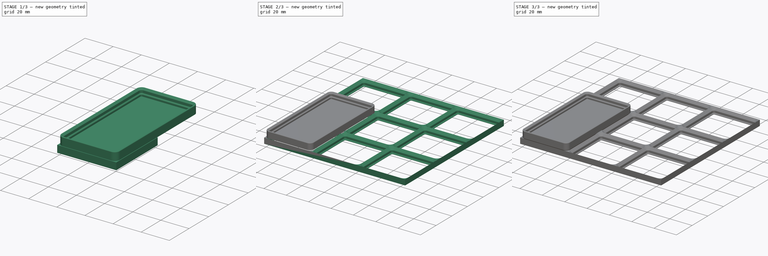
[diagram: build sequence overview — one tinted view per stage of 3, left to right]
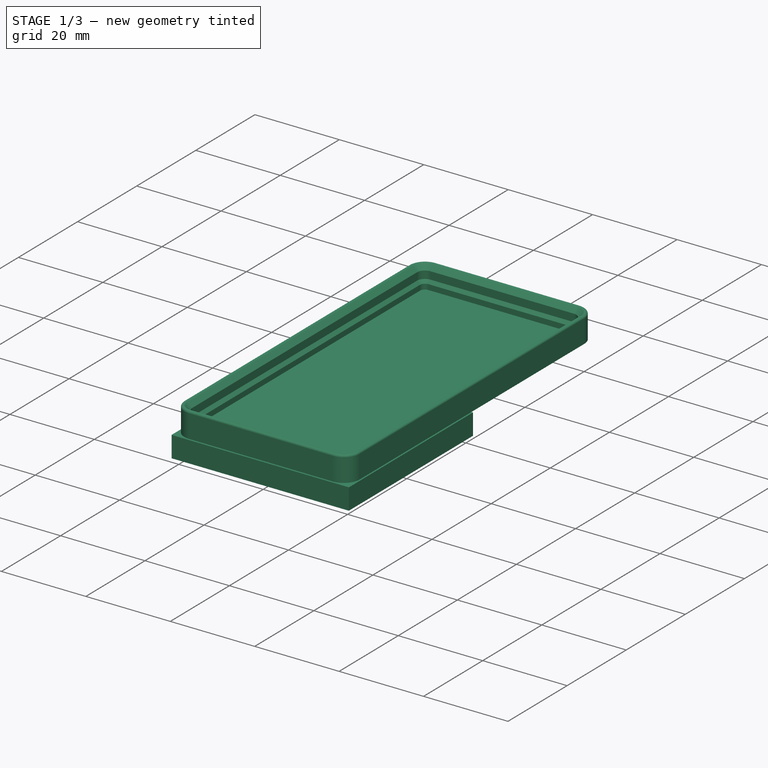
[diagram: stage 1 of 3 — iso view after this stage's code; geometry added in this stage tinted green]
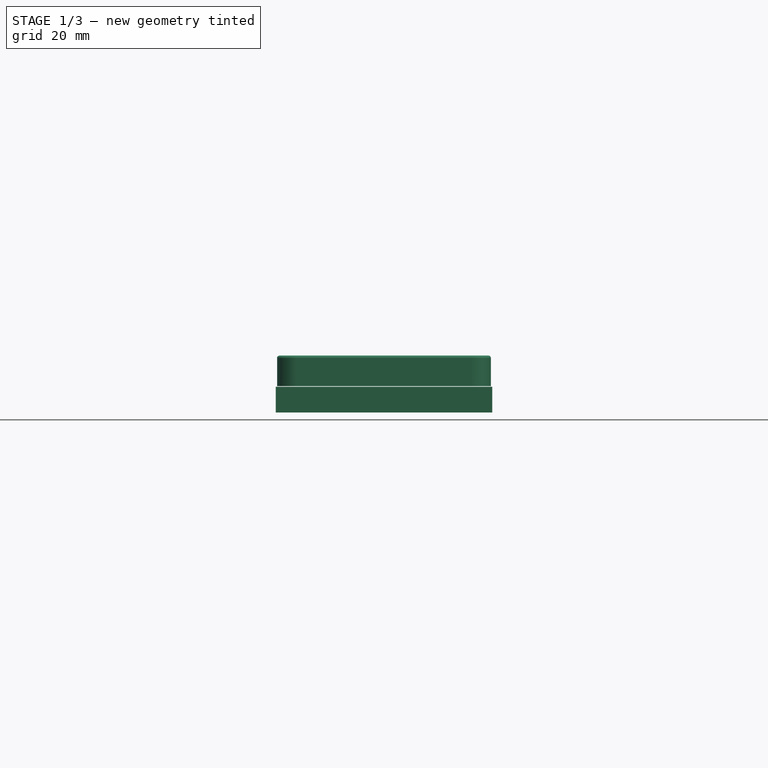
[diagram: stage 1 of 3 — front view after this stage's code; geometry added in this stage tinted green]
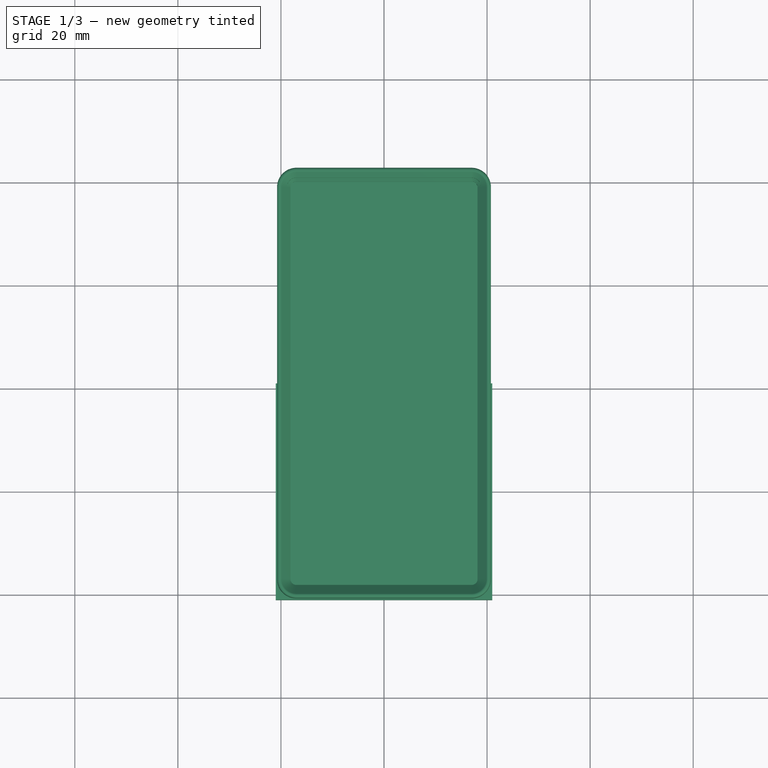
[diagram: stage 1 of 3 — top view after this stage's code; geometry added in this stage tinted green]
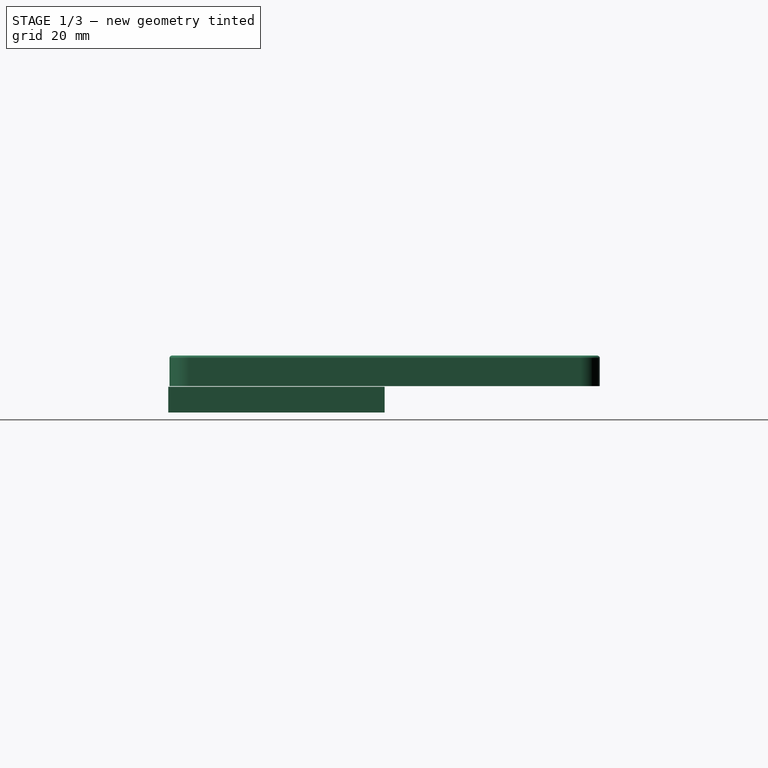
[diagram: stage 1 of 3 — right view after this stage's code; geometry added in this stage tinted green]
FCSTD DOCUMENT  (FreeCAD 1.0R38806 (Git))
Label: Opgave_3.2
License: All rights reserved
LicenseURL: http://en.wikipedia.org/wiki/All_rights_reserved
objects: Sketcher::SketchObject×10, PartDesign::LinearPattern×4, PartDesign::Body×4, PartDesign::Pad×3, PartDesign::AdditivePipe×2, PartDesign::MultiTransform×2, App::VarSet×1, PartDesign::SubtractivePipe×1, App::Part×1
note: 54 computed .brp shape members not serialized (recipe doc carries the construction recipe); baked Part::Feature solids carry a one-line shape summary decoded from their .brp

FEATURE [PartDesign::Body] Body001  label="BinBase"
  AllowCompound = true
  Group = -> [Sketch,Sketch001,AdditivePipe,Sketch002,Pad,MultiTransform,LinearPattern,LinearPattern001]
  Origin = -> Origin002
  Tip = -> MultiTransform
FEATURE [Sketcher::SketchObject] Sketch003
  ArcFitTolerance = 1e-06
  AttachmentSupport = -> [XY_Plane003]
  FullyConstrained = true
  MakeInternals = false
  MapMode = 5
  expr: Constraints[10] = VarSet.GridSize / 2
  expr: Constraints[31] = VarSet.GridRadius
  expr: Constraints[33] = VarSet.GridSize * 1
  expr: Constraints[34] = VarSet.GridSize * 2
  sketch-geometry (14):
    g0: LineSegment [constr] StartX=0 StartY=0 StartZ=0 EndX=-21 EndY=0 EndZ=0
    g1: LineSegment [constr] StartX=-21 StartY=0 StartZ=0 EndX=-21 EndY=-21 EndZ=0
    g2: LineSegment [constr] StartX=-21 StartY=-21 StartZ=0 EndX=0 EndY=-21 EndZ=0
    g3: LineSegment [constr] StartX=0 StartY=-21 StartZ=0 EndX=0 EndY=0 EndZ=0
    g4: LineSegment StartX=17 StartY=63 StartZ=0 EndX=-17 EndY=63 EndZ=0
    g5: LineSegment StartX=-21 StartY=59 StartZ=0 EndX=-21 EndY=-17 EndZ=0
    g6: LineSegment StartX=-17 StartY=-21 StartZ=0 EndX=17 EndY=-21 EndZ=0
    g7: LineSegment StartX=21 StartY=-17 StartZ=0 EndX=21 EndY=59 EndZ=0
    g8: ArcOfCircle CenterX=17 CenterY=59 CenterZ=0 NormalX=0 NormalY=0 NormalZ=1 AngleXU=0 Radius=4 StartAngle=-9e-16 EndAngle=1.5708
    g9: ArcOfCircle CenterX=-17 CenterY=59 CenterZ=0 NormalX=0 NormalY=0 NormalZ=1 AngleXU=0 Radius=4 StartAngle=1.5708 EndAngle=3.14159
    g10: ArcOfCircle CenterX=-17 CenterY=-17 CenterZ=0 NormalX=0 NormalY=0 NormalZ=1 AngleXU=0 Radius=4 StartAngle=3.14159 EndAngle=4.71239
    g11: ArcOfCircle CenterX=17 CenterY=-17 CenterZ=0 NormalX=0 NormalY=0 NormalZ=1 AngleXU=0 Radius=4 StartAngle=4.71239 EndAngle=6.28319
    g12: GeomPoint [constr] X=21 Y=63 Z=0
    g13: GeomPoint [constr] X=-21 Y=-21 Z=0
  constraints (35):
    c: Coincident(g0,g1)
    c: Coincident(g1,g2)
    c: Coincident(g2,g3)
    c: Coincident(g3,g0)
    c: Horizontal(g0)
    c: Horizontal(g2)
    c: Vertical(g1)
    c: Vertical(g3)
    c: Coincident(g0,g-1)
    c: Equal(g1,g2)
    c: DistanceX(g2,g2) = 21
    c: Tangent(g4,g8) = -1.5708
    c: Tangent(g4,g9) = -1.5708
    c: Tangent(g5,g9) = -1.5708
    c: Tangent(g5,g10) = -1.5708
    c: Tangent(g6,g10) = -1.5708
    c: Tangent(g6,g11) = -1.5708
    c: Tangent(g7,g11) = -1.5708
    c: Tangent(g7,g8) = -1.5708
    c: Horizontal(g4)
    c: Horizontal(g6)
    c: Vertical(g5)
    c: Vertical(g7)
    c: Equal(g8,g9)
    c: Equal(g9,g10)
    c: Equal(g10,g11)
    c: PointOnObject(g12,g4)
    c: PointOnObject(g12,g7)
    c: PointOnObject(g13,g5)
    c: PointOnObject(g13,g6)
    c: PointOnObject(g5,g1)
    c: Radius(g10) = 4
    c: PointOnObject(g6,g2)
    c: DistanceX(g5,g7) = 42
    c: Distance(g6,g4) = 84
FEATURE [Sketcher::SketchObject] Sketch004
  ArcFitTolerance = 1e-06
  AttachmentSupport = -> [XZ_Plane003]
  FullyConstrained = true
  MakeInternals = false
  MapMode = 5
  Placement = pos=(0,0,0) rot=(1,0,0;1.5708rad)
  expr: Constraints[26] = 7 mm * 1
  sketch-geometry (10):
    g0: LineSegment StartX=-20.75 StartY=5.44289 StartZ=0 EndX=-20.75 EndY=0 EndZ=0
    g1: LineSegment StartX=-18.85 StartY=2.95 StartZ=0 EndX=-18.85 EndY=4.75 EndZ=0
    g2: LineSegment StartX=-18.85 StartY=4.75 StartZ=0 EndX=-19.8964 EndY=5.79645 EndZ=0
    g3: ArcOfCircle CenterX=-20.25 CenterY=5.44289 CenterZ=0 NormalX=0 NormalY=0 NormalZ=1 AngleXU=0 Radius=0.5 StartAngle=0.785398 EndAngle=3.14159
    g4: GeomPoint [constr] X=-20.75 Y=6.65 Z=0
    g5: LineSegment StartX=-18.85 StartY=2.95 StartZ=0 EndX=-18.15 EndY=2.25 EndZ=0
    g6: GeomPoint X=-21 Y=-4.75 Z=0
    g7: LineSegment [constr] StartX=-18.85 StartY=4.75 StartZ=0 EndX=-21 EndY=6.9 EndZ=0
    g8: LineSegment StartX=-18.15 StartY=2.25 StartZ=0 EndX=-18.15 EndY=0 EndZ=0
    g9: LineSegment StartX=-18.15 StartY=0 StartZ=0 EndX=-20.75 EndY=0 EndZ=0
  constraints (28):
    c: Coincident(g1,g2)
    c: Vertical(g0)
    c: Vertical(g1)
    c: PointOnObject(g4,g2)
    c: PointOnObject(g4,g0)
    c: Tangent(g2,g3) = -1.5708
    c: Tangent(g0,g3) = -1.5708
    c: Coincident(g1,g5)
    c: Radius(g3) = 0.5
    c: Parallel(g2,g5)
    c: DistanceX(g6,g-1) = 21
    c: DistanceY(g5,g1) = 0.7
    c: DistanceX(g6,g0) = 0.25
    c: Coincident(g7,g1)
    c: Angle(g0,g7) = 0.785398
    c: DistanceY(g1,g7) = 2.15
    c: Vertical(g6,g7)
    c: Coincident(g5,g8)
    c: Vertical(g8)
    c: Coincident(g8,g9)
    c: Coincident(g9,g0)
    c: Horizontal(g9)
    c: PointOnObject(g2,g7)
    c: PointOnObject(g0,g-1)
    c: DistanceY(g1,g1) = 1.8
    c: DistanceY(g6,g-1) = 4.75
    c: DistanceY(g6,g5) = 7
    c: DistanceY(g8,g5) = 2.25
FEATURE [Sketcher::SketchObject] Sketch007
  ArcFitTolerance = 1e-06
  AttachmentSupport = -> [XZ_Plane001]
  FullyConstrained = true
  MakeInternals = false
  MapMode = 5
  Placement = pos=(0,0,0) rot=(1,0,0;1.5708rad)
  sketch-geometry (5):
    g0: LineSegment StartX=-21 StartY=-0.1 StartZ=0 EndX=-18.85 EndY=-2.25 EndZ=0
    g1: LineSegment StartX=-18.85 StartY=-2.25 StartZ=0 EndX=-18.85 EndY=-4.05 EndZ=0
    g2: LineSegment StartX=-18.85 StartY=-4.05 StartZ=0 EndX=-18.15 EndY=-4.75 EndZ=0
    g3: LineSegment StartX=-21 StartY=-0.1 StartZ=0 EndX=-18.15 EndY=-0.1 EndZ=0
    g4: LineSegment StartX=-18.15 StartY=-0.1 StartZ=0 EndX=-18.15 EndY=-4.75 EndZ=0
  constraints (14):
    c: Coincident(g0,g1)
    c: Vertical(g1)
    c: Coincident(g1,g2)
    c: Parallel(g0,g2)
    c: DistanceY(g0,g0) = 2.15
    c: DistanceY(g1,g0) = 1.8
    c: DistanceY(g2,g1) = 0.7
    c: Coincident(g0,g-3)
    c: Coincident(g0,g3)
    c: Horizontal(g3)
    c: Coincident(g3,g4)
    c: Vertical(g4)
    c: Coincident(g4,g2)
    c: Angle(g0,g3) = 0.785398
FEATURE [Sketcher::SketchObject] Sketch009
  ArcFitTolerance = 1e-06
  AttachmentSupport = -> [XY_Plane001]
  FullyConstrained = true
  MakeInternals = false
  MapMode = 5
  sketch-geometry (10):
    g0: LineSegment StartX=-17 StartY=-21 StartZ=0 EndX=17 EndY=-21 EndZ=0
    g1: LineSegment StartX=21 StartY=-17 StartZ=0 EndX=21 EndY=17 EndZ=0
    g2: LineSegment StartX=17 StartY=21 StartZ=0 EndX=-17 EndY=21 EndZ=0
    g3: LineSegment StartX=-21 StartY=17 StartZ=0 EndX=-21 EndY=-17 EndZ=0
    g4: ArcOfCircle CenterX=-17 CenterY=-17 CenterZ=0 NormalX=0 NormalY=0 NormalZ=1 AngleXU=0 Radius=4 StartAngle=3.14159 EndAngle=4.71239
    g5: ArcOfCircle CenterX=17 CenterY=-17 CenterZ=0 NormalX=0 NormalY=0 NormalZ=1 AngleXU=0 Radius=4 StartAngle=4.71239 EndAngle=6.28319
    g6: ArcOfCircle CenterX=17 CenterY=17 CenterZ=0 NormalX=0 NormalY=0 NormalZ=1 AngleXU=0 Radius=4 StartAngle=3e-16 EndAngle=1.5708
    g7: ArcOfCircle CenterX=-17 CenterY=17 CenterZ=0 NormalX=0 NormalY=0 NormalZ=1 AngleXU=0 Radius=4 StartAngle=1.5708 EndAngle=3.14159
    g8: GeomPoint [constr] X=21 Y=21 Z=0
    g9: GeomPoint [constr] X=0 Y=0 Z=0
  constraints (22):
    c: Tangent(g0,g4) = -1.5708
    c: Tangent(g0,g5) = -1.5708
    c: Tangent(g1,g5) = -1.5708
    c: Tangent(g1,g6) = -1.5708
    c: Tangent(g2,g6) = -1.5708
    c: Tangent(g2,g7) = -1.5708
    c: Tangent(g3,g7) = -1.5708
    c: Tangent(g3,g4) = -1.5708
    c: Horizontal(g0)
    c: Horizontal(g2)
    c: Vertical(g1)
    c: Vertical(g3)
    c: Equal(g4,g5)
    c: Equal(g5,g6)
    c: Equal(g6,g7)
    c: Symmetric(g2,g0,g9)
    c: PointOnObject(g8,g1)
    c: PointOnObject(g8,g2)
    c: Coincident(g9,g-1)
    c: Radius(g7) = 4
    c: Equal(g2,g3)
    c: DistanceX(g3,g1) = 42
FEATURE [Sketcher::SketchObject] Sketch008
  ArcFitTolerance = 1e-06
  AttachmentOffset = pos=(0,0,-0.1) rot=(0,0,1;0rad)
  AttachmentSupport = -> [XY_Plane001]
  ExternalGeometry = -> [Sketch007,Sketch009]
  FullyConstrained = false
  MakeInternals = false
  MapMode = 5
  Placement = pos=(0,0,-0.1) rot=(0,0,1;0rad)
  sketch-geometry (17):
    g0: LineSegment StartX=-21 StartY=-21 StartZ=0 EndX=21 EndY=-21 EndZ=0
    g1: LineSegment StartX=21 StartY=-21 StartZ=0 EndX=21 EndY=21 EndZ=0
    g2: LineSegment StartX=21 StartY=21 StartZ=0 EndX=-21 EndY=21 EndZ=0
    g3: LineSegment StartX=-21 StartY=21 StartZ=0 EndX=-21 EndY=-21 EndZ=0
    g4: GeomPoint [constr] X=0 Y=0 Z=0
    g5: LineSegment StartX=-17 StartY=-18.15 StartZ=0 EndX=17 EndY=-18.15 EndZ=0
    g6: LineSegment StartX=18.15 StartY=-17 StartZ=0 EndX=18.15 EndY=17 EndZ=0
    g7: LineSegment StartX=17 StartY=18.15 StartZ=0 EndX=-17 EndY=18.15 EndZ=0
    g8: LineSegment StartX=-18.15 StartY=17 StartZ=0 EndX=-18.15 EndY=-17 EndZ=0
    g9: ArcOfCircle CenterX=-17 CenterY=-17 CenterZ=0 NormalX=0 NormalY=0 NormalZ=1 AngleXU=0 Radius=1.15 StartAngle=3.14159 EndAngle=4.71239
    g10: ArcOfCircle CenterX=17 CenterY=-17 CenterZ=0 NormalX=0 NormalY=0 NormalZ=1 AngleXU=0 Radius=1.15 StartAngle=4.71239 EndAngle=6.28319
    g11: ArcOfCircle CenterX=17 CenterY=17 CenterZ=0 NormalX=0 NormalY=0 NormalZ=1 AngleXU=0 Radius=1.15 StartAngle=-2.84e-14 EndAngle=1.5708
    g12: ArcOfCircle CenterX=-17 CenterY=17 CenterZ=0 NormalX=0 NormalY=0 NormalZ=1 AngleXU=0 Radius=1.15 StartAngle=1.5708 EndAngle=3.14159
    g13: GeomPoint [constr] X=18.15 Y=18.15 Z=0
    g14: GeomPoint [constr] X=0 Y=0 Z=0
    g15: LineSegment [constr] StartX=-21 StartY=21 StartZ=0 EndX=-21 EndY=15.2013 EndZ=0
    g16: LineSegment [constr] StartX=-15.2013 StartY=21 StartZ=0 EndX=-21 EndY=21 EndZ=0
  constraints (37):
    c: Coincident(g0,g1)
    c: Coincident(g1,g2)
    c: Coincident(g2,g3)
    c: Coincident(g3,g0)
    c: Horizontal(g0)
    c: Horizontal(g2)
    c: Vertical(g1)
    c: Vertical(g3)
    c: Symmetric(g2,g0,g4)
    c: Coincident(g4,g-1)
    c: Equal(g2,g3)
    c: DistanceX(g0,g0) = 42
    c: Tangent(g5,g9) = -1.5708
    c: Tangent(g5,g10) = -1.5708
    c: Tangent(g6,g10) = -1.5708
    c: Tangent(g6,g11) = -1.5708
    c: Tangent(g7,g11) = -1.5708
    c: Tangent(g7,g12) = -1.5708
    c: Tangent(g8,g12) = -1.5708
    c: Tangent(g8,g9) = -1.5708
    c: Horizontal(g5)
    c: Horizontal(g7)
    c: Vertical(g6)
    c: Vertical(g8)
    c: Equal(g9,g10)
    c: Equal(g10,g11)
    c: Equal(g11,g12)
    c: Symmetric(g7,g5,g14)
    c: PointOnObject(g13,g6)
    c: PointOnObject(g13,g7)
    c: Coincident(g14,g4)
    c: Vertical(g8,g-3)
    c: Coincident(g16,g15)
    c: Vertical(g15)
    c: Horizontal(g16)
    c: Coincident(g15,g2)
    c: Coincident(g12,g-4)
FEATURE [PartDesign::Pad] Pad002
  Direction = (0,0,1)
  Length = 5
  Length2 = 10
  Profile = -> Sketch008
  ReferenceAxis = -> Sketch008 [N_Axis]
  Refine = true
  Reversed = true
  Suppressed = false
  Type = 0
FEATURE [PartDesign::Body] Body  label="Baseplate"
  AllowCompound = true
  Group = -> [Sketch007,Sketch008,Sketch009,Pad002,SubtractivePipe,MultiTransform001,LinearPattern002,LinearPattern003]
  Origin = -> Origin001
  Tip = -> MultiTransform001
FEATURE [PartDesign::AdditivePipe] AdditivePipe001
  AuxilleryCurvelinear = true
  AuxillerySpineTangent = false
  Binormal = (0,0,0)
  Mode = 0
  Placement = pos=(0,0,0) rot=(1,0,0;1.5708rad)
  Profile = -> Sketch004
  Refine = true
  Spine = -> Sketch003
  SpineTangent = false
  Suppressed = false
  Transformation = 0
  Transition = 0
FEATURE [Sketcher::SketchObject] Sketch010
  ArcFitTolerance = 1e-06
  AttachmentSupport = -> [XY_Plane003]
  ExternalGeometry = -> [AdditivePipe001]
  FullyConstrained = true
  MakeInternals = false
  MapMode = 5
  sketch-geometry (10):
    g0: LineSegment StartX=-18.15 StartY=59 StartZ=0 EndX=-18.15 EndY=-17 EndZ=0
    g1: LineSegment StartX=-17 StartY=-18.15 StartZ=0 EndX=17 EndY=-18.15 EndZ=0
    g2: LineSegment StartX=18.15 StartY=-17 StartZ=0 EndX=18.15 EndY=59 EndZ=0
    g3: LineSegment StartX=17 StartY=60.15 StartZ=0 EndX=-17 EndY=60.15 EndZ=0
    g4: ArcOfCircle CenterX=-17 CenterY=59 CenterZ=0 NormalX=0 NormalY=0 NormalZ=1 AngleXU=0 Radius=1.15 StartAngle=1.5708 EndAngle=3.14159
    g5: ArcOfCircle CenterX=-17 CenterY=-17 CenterZ=0 NormalX=0 NormalY=0 NormalZ=1 AngleXU=0 Radius=1.15 StartAngle=3.14159 EndAngle=4.71239
    g6: ArcOfCircle CenterX=17 CenterY=-17 CenterZ=0 NormalX=0 NormalY=0 NormalZ=1 AngleXU=0 Radius=1.15 StartAngle=4.71239 EndAngle=6.28319
    g7: ArcOfCircle CenterX=17 CenterY=59 CenterZ=0 NormalX=0 NormalY=0 NormalZ=1 AngleXU=0 Radius=1.15 StartAngle=5.4e-15 EndAngle=1.5708
    g8: GeomPoint [constr] X=-18.15 Y=60.15 Z=0
    g9: GeomPoint [constr] X=18.15 Y=-18.15 Z=0
  constraints (22):
    c: Tangent(g0,g4) = -1.5708
    c: Tangent(g0,g5) = -1.5708
    c: Tangent(g1,g5) = -1.5708
    c: Tangent(g1,g6) = -1.5708
    c: Tangent(g2,g6) = -1.5708
    c: Tangent(g2,g7) = -1.5708
    c: Tangent(g3,g7) = -1.5708
    c: Tangent(g3,g4) = -1.5708
    c: Vertical(g0)
    c: Vertical(g2)
    c: Horizontal(g1)
    c: Horizontal(g3)
    c: Equal(g4,g5)
    c: Equal(g5,g6)
    c: Equal(g6,g7)
    c: PointOnObject(g8,g0)
    c: PointOnObject(g8,g3)
    c: PointOnObject(g9,g1)
    c: PointOnObject(g9,g2)
    c: Equal(g-3,g5)
    c: Coincident(g5,g-3)
    c: Coincident(g-4,g7)
FEATURE [PartDesign::Pad] Pad003
  BaseFeature = -> AdditivePipe001
  Direction = (0,0,1)
  Length = 1
  Length2 = 10
  Placement = pos=(0,0,0) rot=(1,0,0;1.5708rad)
  Profile = -> Sketch010
  ReferenceAxis = -> Sketch010 [N_Axis]
  Refine = true
  Suppressed = false
  Type = 0
FEATURE [PartDesign::Body] Body002  label="BinBasket"
  AllowCompound = true
  Group = -> [Sketch003,Sketch004,AdditivePipe001,Sketch010,Pad003]
  Origin = -> Origin003
  Tip = -> Pad003
FEATURE [App::Part] Part
  Group = -> [Body,Body001,Body002,VarSet]
  Origin = -> Origin
FEATURE [Sketcher::SketchObject] Sketch011
  ArcFitTolerance = 1e-06
  AttachmentSupport = -> [XY_Plane004]
  FullyConstrained = false
  MakeInternals = false
  MapMode = 5
  sketch-geometry (10):
    g0: LineSegment StartX=-35.9996 StartY=-0.1 StartZ=0 EndX=-33.8496 EndY=-2.25 EndZ=0
    g1: LineSegment StartX=-33.8496 StartY=-2.25 StartZ=0 EndX=-33.8496 EndY=-4.05 EndZ=0
    g2: LineSegment StartX=-33.8496 StartY=-4.05 StartZ=0 EndX=-33.1496 EndY=-4.75 EndZ=0
    g3: LineSegment StartX=-33.1496 StartY=-4.75 StartZ=0 EndX=-33.1496 EndY=-5.1 EndZ=0
    g4: LineSegment StartX=-35.7496 StartY=0 StartZ=0 EndX=-33.5996 EndY=-2.15 EndZ=0
    g5: LineSegment StartX=-33.5996 StartY=-2.15 StartZ=0 EndX=-33.5996 EndY=-3.95 EndZ=0
    g6: LineSegment StartX=-33.5996 StartY=-3.95 StartZ=0 EndX=-32.7996 EndY=-4.75 EndZ=0
    g7: LineSegment StartX=-32.7996 StartY=-4.75 StartZ=0 EndX=-29.9435 EndY=-4.75 EndZ=0
    g8: LineSegment [constr] StartX=-33.5996 StartY=-3.95 StartZ=0 EndX=-33.5996 EndY=-4.3 EndZ=0
    g9: LineSegment StartX=-33.1496 StartY=-5.1 StartZ=0 EndX=-30.7063 EndY=-5.1 EndZ=0
  constraints (30):
    c: Coincident(g0,g1)
    c: Vertical(g1)
    c: Coincident(g1,g2)
    c: Coincident(g2,g3)
    c: Vertical(g3)
    c: Parallel(g0,g2)
    c: Angle(g2,g-1) = 0.785398
    c: DistanceY(g0,g0) = 2.15
    c: DistanceY(g1,g0) = 1.8
    c: DistanceY(g2,g1) = 0.7
    c: DistanceY(g0,g-1) = 0.1
    c: Coincident(g4,g5)
    c: Coincident(g5,g6)
    c: Coincident(g6,g7)
    c: Horizontal(g7)
    c: Parallel(g6,g2)
    c: Parallel(g4,g0)
    c: Equal(g0,g4)
    c: Vertical(g5)
    c: Equal(g5,g1)
    c: DistanceY(g6,g5) = 0.8
    c: PointOnObject(g4,g-1)
    c: DistanceX(g0,g4) = 0.25
    c: Coincident(g8,g5)
    c: PointOnObject(g8,g2)
    c: Vertical(g8)
    c: DistanceY(g8,g8) = 0.35
    c: Coincident(g9,g3)
    c: Horizontal(g9)
    c: DistanceY(g3,g3) = 0.35
FEATURE [PartDesign::Body] Body003  label="Body"
  AllowCompound = true
  Group = -> [Sketch011]
  Origin = -> Origin004
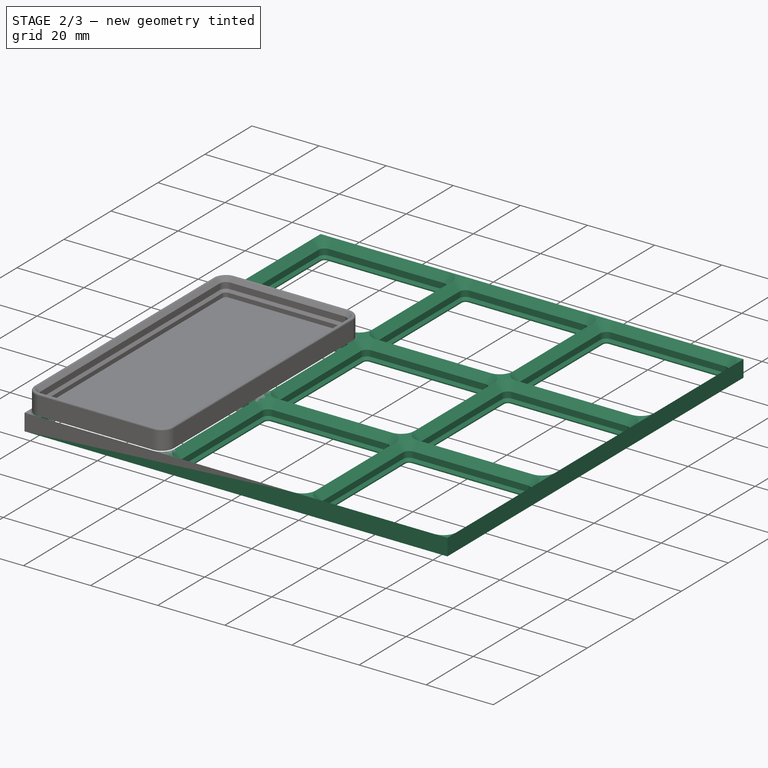
[diagram: stage 2 of 3 — iso view after this stage's code; geometry added in this stage tinted green]
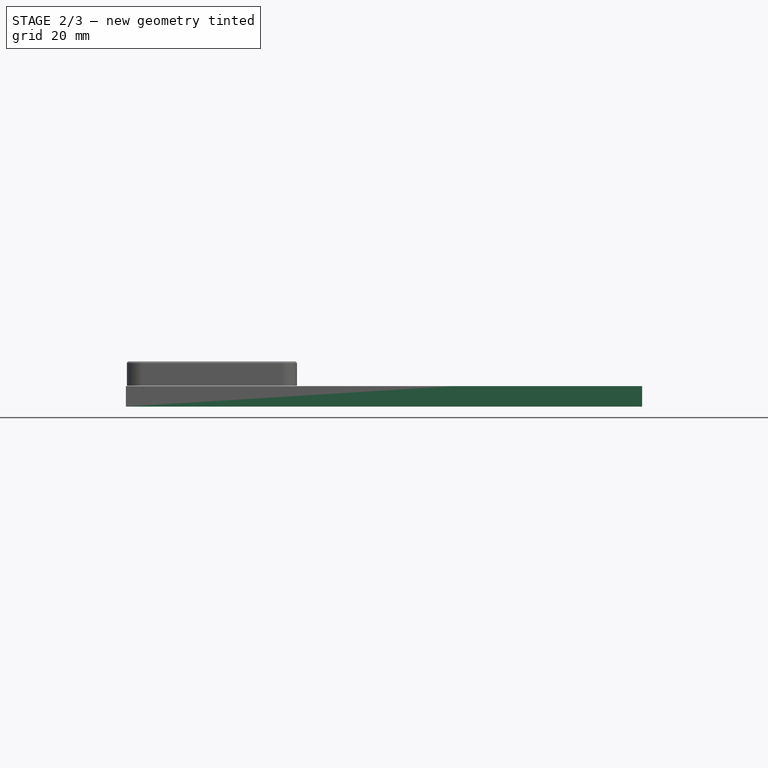
[diagram: stage 2 of 3 — front view after this stage's code; geometry added in this stage tinted green]
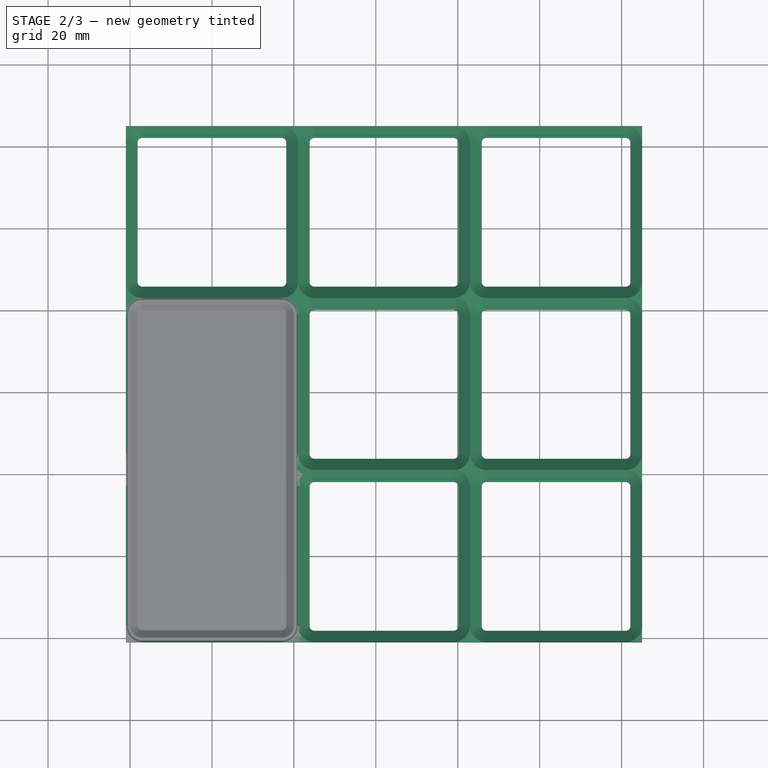
[diagram: stage 2 of 3 — top view after this stage's code; geometry added in this stage tinted green]
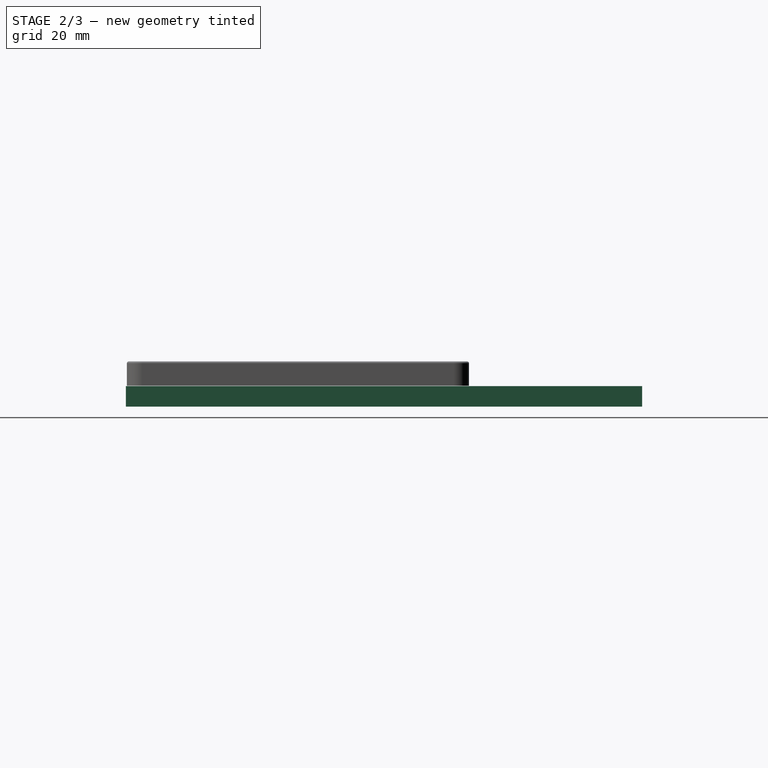
[diagram: stage 2 of 3 — right view after this stage's code; geometry added in this stage tinted green]
FEATURE [PartDesign::SubtractivePipe] SubtractivePipe
  AuxilleryCurvelinear = true
  AuxillerySpineTangent = false
  BaseFeature = -> Pad002
  Binormal = (0,0,0)
  Mode = 0
  Profile = -> Sketch007
  Refine = true
  Spine = -> Sketch009
  SpineTangent = false
  Suppressed = false
  Transformation = 0
  Transition = 0
FEATURE [PartDesign::LinearPattern] LinearPattern002
  Direction = -> X_Axis001
  Length = 84
  Mode = 1
  Occurrences = 3
  Offset = 42
  Refine = true
  Suppressed = false
  TransformMode = 0
FEATURE [PartDesign::LinearPattern] LinearPattern003
  Direction = -> Y_Axis001
  Length = 84
  Mode = 1
  Occurrences = 3
  Offset = 42
  Refine = true
  Suppressed = false
  TransformMode = 0
FEATURE [PartDesign::MultiTransform] MultiTransform001
  BaseFeature = -> SubtractivePipe
  Originals = -> [Pad002,SubtractivePipe]
  Refine = true
  Suppressed = false
  TransformMode = 0
  Transformations = -> [LinearPattern002,LinearPattern003]
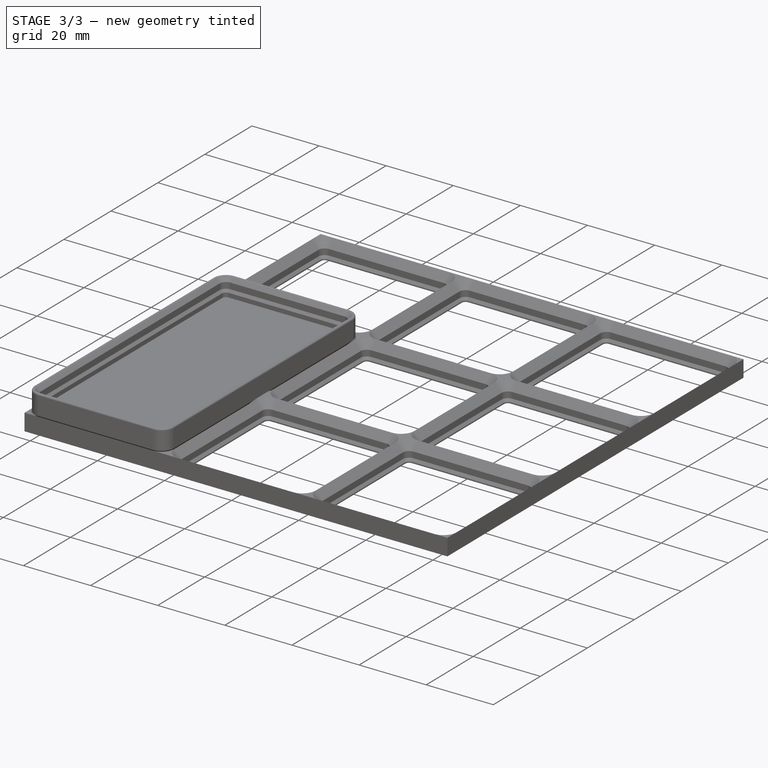
[diagram: stage 3 of 3 — iso view after this stage's code; geometry added in this stage tinted green]
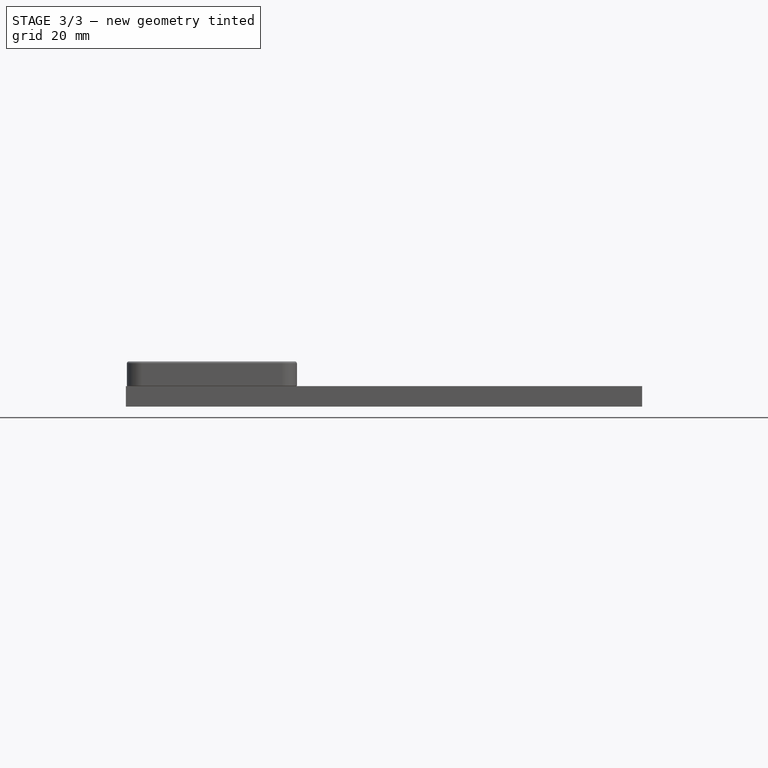
[diagram: stage 3 of 3 — front view after this stage's code; geometry added in this stage tinted green]
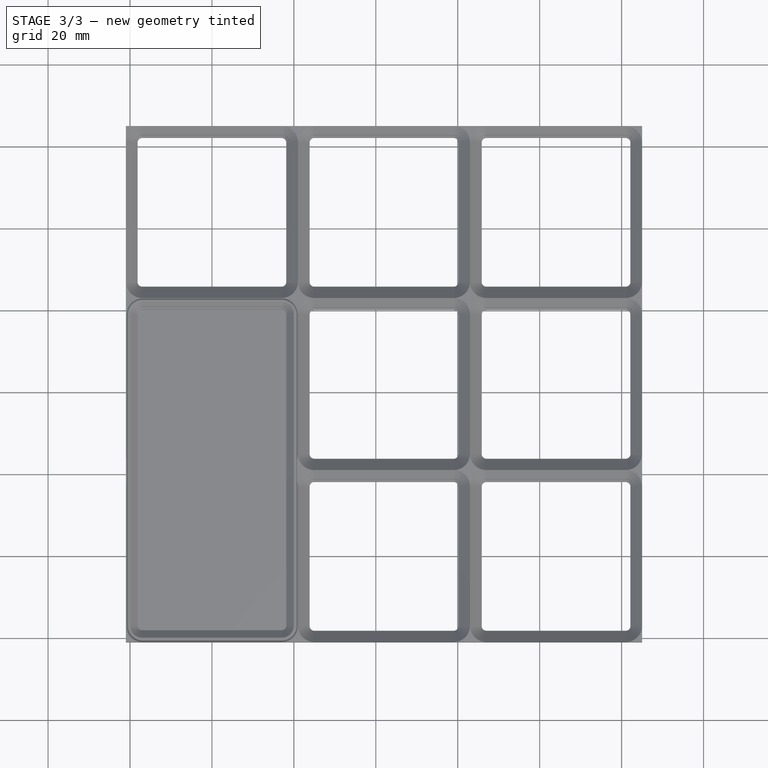
[diagram: stage 3 of 3 — top view after this stage's code; geometry added in this stage tinted green]
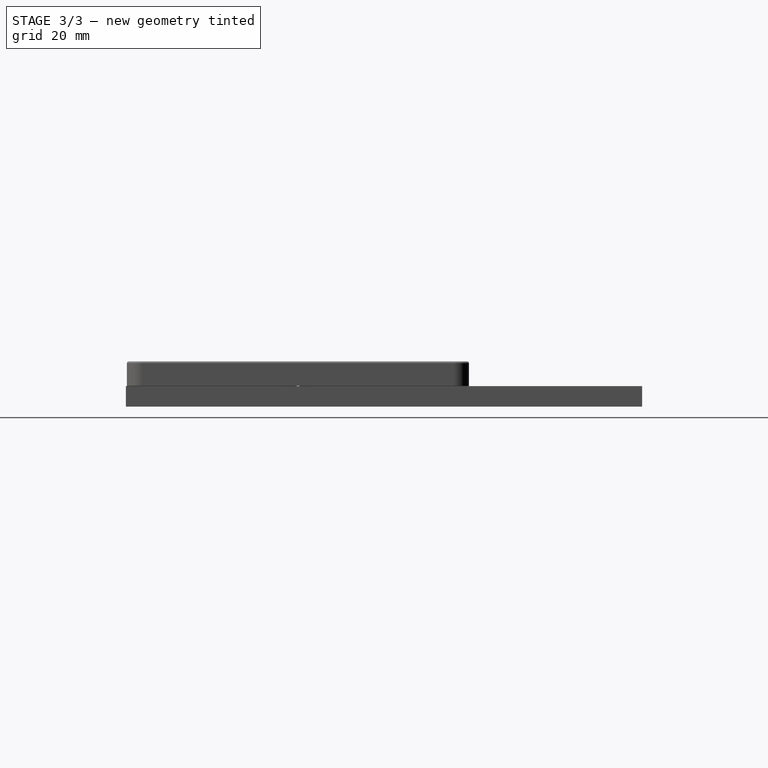
[diagram: stage 3 of 3 — right view after this stage's code; geometry added in this stage tinted green]
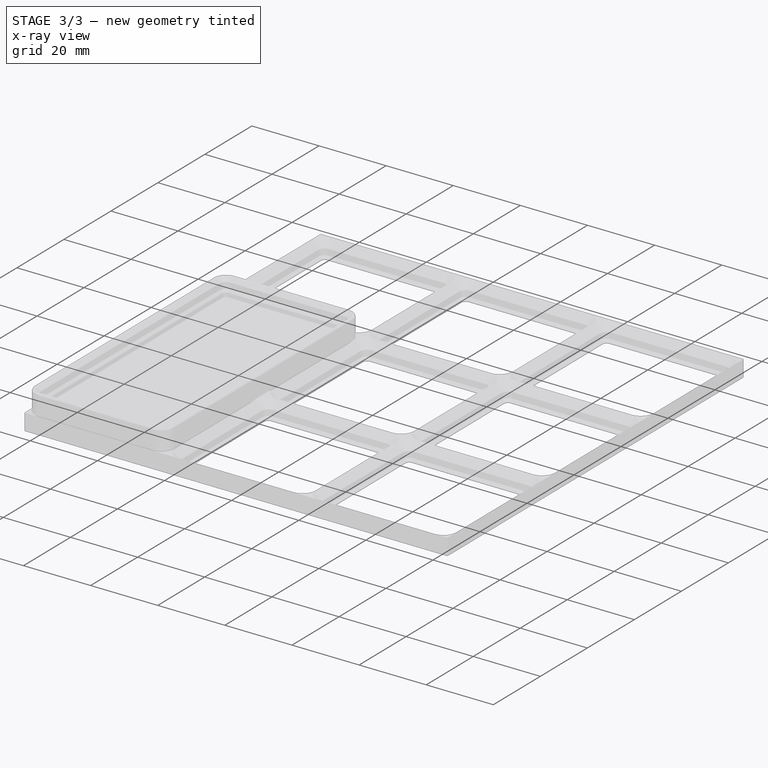
[diagram: stage 3 of 3 — x-ray composite at the iso view; earlier geometry ghosted, this stage's added geometry solid]
FEATURE [App::VarSet] VarSet
  GridAngle = 45
  GridRadius = 4
  GridSize = 42
FEATURE [Sketcher::SketchObject] Sketch
  ArcFitTolerance = 1e-06
  AttachmentSupport = -> [XY_Plane002]
  FullyConstrained = true
  MakeInternals = false
  MapMode = 5
  expr: Constraints[19] = VarSet.GridRadius
  expr: Constraints[21] = VarSet.GridSize
  sketch-geometry (10):
    g0: LineSegment StartX=-17 StartY=-21 StartZ=0 EndX=17 EndY=-21 EndZ=0
    g1: LineSegment StartX=21 StartY=-17 StartZ=0 EndX=21 EndY=17 EndZ=0
    g2: LineSegment StartX=17 StartY=21 StartZ=0 EndX=-17 EndY=21 EndZ=0
    g3: LineSegment StartX=-21 StartY=17 StartZ=0 EndX=-21 EndY=-17 EndZ=0
    g4: ArcOfCircle CenterX=-17 CenterY=-17 CenterZ=0 NormalX=0 NormalY=0 NormalZ=1 AngleXU=0 Radius=4 StartAngle=3.14159 EndAngle=4.71239
    g5: ArcOfCircle CenterX=17 CenterY=-17 CenterZ=0 NormalX=0 NormalY=0 NormalZ=1 AngleXU=0 Radius=4 StartAngle=4.71239 EndAngle=6.28319
    g6: ArcOfCircle CenterX=17 CenterY=17 CenterZ=0 NormalX=0 NormalY=0 NormalZ=1 AngleXU=0 Radius=4 StartAngle=0 EndAngle=1.5708
    g7: ArcOfCircle CenterX=-17 CenterY=17 CenterZ=0 NormalX=0 NormalY=0 NormalZ=1 AngleXU=0 Radius=4 StartAngle=1.5708 EndAngle=3.14159
    g8: GeomPoint [constr] X=21 Y=21 Z=0
    g9: GeomPoint [constr] X=0 Y=0 Z=0
  constraints (22):
    c: Tangent(g0,g4) = -1.5708
    c: Tangent(g0,g5) = -1.5708
    c: Tangent(g1,g5) = -1.5708
    c: Tangent(g1,g6) = -1.5708
    c: Tangent(g2,g6) = -1.5708
    c: Tangent(g2,g7) = -1.5708
    c: Tangent(g3,g7) = -1.5708
    c: Tangent(g3,g4) = -1.5708
    c: Horizontal(g0)
    c: Horizontal(g2)
    c: Vertical(g1)
    c: Vertical(g3)
    c: Equal(g4,g5)
    c: Equal(g5,g6)
    c: Equal(g6,g7)
    c: Symmetric(g2,g0,g9)
    c: PointOnObject(g8,g1)
    c: PointOnObject(g8,g2)
    c: Coincident(g9,g-1)
    c: Radius(g7) = 4
    c: Equal(g3,g2)
    c: DistanceX(g3,g1) = 42
FEATURE [Sketcher::SketchObject] Sketch001
  ArcFitTolerance = 1e-06
  AttachmentSupport = -> [XZ_Plane002]
  ExternalGeometry = -> [Sketch]
  FullyConstrained = true
  MakeInternals = false
  MapMode = 5
  Placement = pos=(0,0,0) rot=(1,0,0;1.5708rad)
  expr: Constraints[14] = VarSet.GridAngle
  sketch-geometry (5):
    g0: LineSegment StartX=-20.75 StartY=0 StartZ=0 EndX=-18.6 EndY=-2.15 EndZ=0
    g1: LineSegment StartX=-18.6 StartY=-2.15 StartZ=0 EndX=-18.6 EndY=-3.95 EndZ=0
    g2: LineSegment StartX=-18.6 StartY=-3.95 StartZ=0 EndX=-17.8 EndY=-4.75 EndZ=0
    g3: LineSegment StartX=-17.8 StartY=-4.75 StartZ=0 EndX=-17.8 EndY=0 EndZ=0
    g4: LineSegment StartX=-17.8 StartY=0 StartZ=0 EndX=-20.75 EndY=0 EndZ=0
  constraints (15):
    c: Coincident(g0,g1)
    c: Coincident(g1,g2)
    c: Vertical(g1)
    c: Parallel(g0,g2)
    c: DistanceY(g2,g1) = 0.8
    c: DistanceY(g1,g0) = 1.8
    c: DistanceY(g0,g0) = 2.15
    c: DistanceX(g-3,g0) = 0.25
    c: Horizontal(g0,g-3)
    c: Coincident(g2,g3)
    c: PointOnObject(g3,g-1)
    c: Vertical(g3)
    c: Coincident(g3,g4)
    c: Coincident(g4,g0)
    c: Angle(g0,g4) = 0.785398
FEATURE [PartDesign::AdditivePipe] AdditivePipe
  AuxilleryCurvelinear = true
  AuxillerySpineTangent = false
  Binormal = (0,0,0)
  Mode = 0
  Placement = pos=(0,0,0) rot=(1,0,0;1.5708rad)
  Profile = -> Sketch001
  Refine = true
  Spine = -> Sketch
  SpineTangent = false
  Suppressed = false
  Transformation = 0
  Transition = 0
FEATURE [Sketcher::SketchObject] Sketch002
  ArcFitTolerance = 1e-06
  AttachmentSupport = -> [XY_Plane002]
  ExternalGeometry = -> [AdditivePipe]
  FullyConstrained = true
  MakeInternals = false
  MapMode = 5
  sketch-geometry (10):
    g0: LineSegment StartX=-17 StartY=-17.8 StartZ=0 EndX=17 EndY=-17.8 EndZ=0
    g1: LineSegment StartX=17.8 StartY=-17 StartZ=0 EndX=17.8 EndY=17 EndZ=0
    g2: LineSegment StartX=17 StartY=17.8 StartZ=0 EndX=-17 EndY=17.8 EndZ=0
    g3: LineSegment StartX=-17.8 StartY=17 StartZ=0 EndX=-17.8 EndY=-17 EndZ=0
    g4: ArcOfCircle CenterX=-17 CenterY=-17 CenterZ=0 NormalX=0 NormalY=0 NormalZ=1 AngleXU=0 Radius=0.8 StartAngle=3.14159 EndAngle=4.71239
    g5: ArcOfCircle CenterX=17 CenterY=-17 CenterZ=0 NormalX=0 NormalY=0 NormalZ=1 AngleXU=0 Radius=0.8 StartAngle=4.71239 EndAngle=6.28319
    g6: ArcOfCircle CenterX=17 CenterY=17 CenterZ=0 NormalX=0 NormalY=0 NormalZ=1 AngleXU=0 Radius=0.8 StartAngle=2.2e-15 EndAngle=1.5708
    g7: ArcOfCircle CenterX=-17 CenterY=17 CenterZ=0 NormalX=0 NormalY=0 NormalZ=1 AngleXU=0 Radius=0.8 StartAngle=1.5708 EndAngle=3.14159
    g8: GeomPoint [constr] X=17.8 Y=17.8 Z=0
    g9: GeomPoint [constr] X=0 Y=0 Z=0
  constraints (21):
    c: Tangent(g0,g4) = -1.5708
    c: Tangent(g0,g5) = -1.5708
    c: Tangent(g1,g5) = -1.5708
    c: Tangent(g1,g6) = -1.5708
    c: Tangent(g2,g6) = -1.5708
    c: Tangent(g2,g7) = -1.5708
    c: Tangent(g3,g7) = -1.5708
    c: Tangent(g3,g4) = -1.5708
    c: Horizontal(g0)
    c: Horizontal(g2)
    c: Vertical(g1)
    c: Vertical(g3)
    c: Equal(g4,g5)
    c: Equal(g5,g6)
    c: Equal(g6,g7)
    c: Symmetric(g2,g0,g9)
    c: PointOnObject(g8,g1)
    c: PointOnObject(g8,g2)
    c: Coincident(g9,g-1)
    c: Equal(g7,g-3)
    c: Coincident(g-3,g7)
FEATURE [PartDesign::Pad] Pad
  BaseFeature = -> AdditivePipe
  Direction = (0,0,1)
  Length = 4.75
  Length2 = 10
  Placement = pos=(0,0,0) rot=(1,0,0;1.5708rad)
  Profile = -> Sketch002
  ReferenceAxis = -> Sketch002 [N_Axis]
  Refine = true
  Reversed = true
  Suppressed = false
  Type = 0
FEATURE [PartDesign::LinearPattern] LinearPattern
  Direction = -> X_Axis002
  Length = 0
  Mode = 1
  Occurrences = 1
  Offset = 42
  Placement = pos=(0,0,0) rot=(1,0,0;1.5708rad)
  Refine = true
  Suppressed = false
  TransformMode = 0
FEATURE [PartDesign::LinearPattern] LinearPattern001
  Direction = -> Y_Axis002
  Length = 42
  Mode = 1
  Occurrences = 2
  Offset = 42
  Placement = pos=(0,0,0) rot=(1,0,0;1.5708rad)
  Refine = true
  Suppressed = false
  TransformMode = 0
FEATURE [PartDesign::MultiTransform] MultiTransform
  BaseFeature = -> Pad
  Originals = -> [Pad,AdditivePipe]
  Placement = pos=(0,0,0) rot=(1,0,0;1.5708rad)
  Refine = true
  Suppressed = false
  TransformMode = 0
  Transformations = -> [LinearPattern,LinearPattern001]
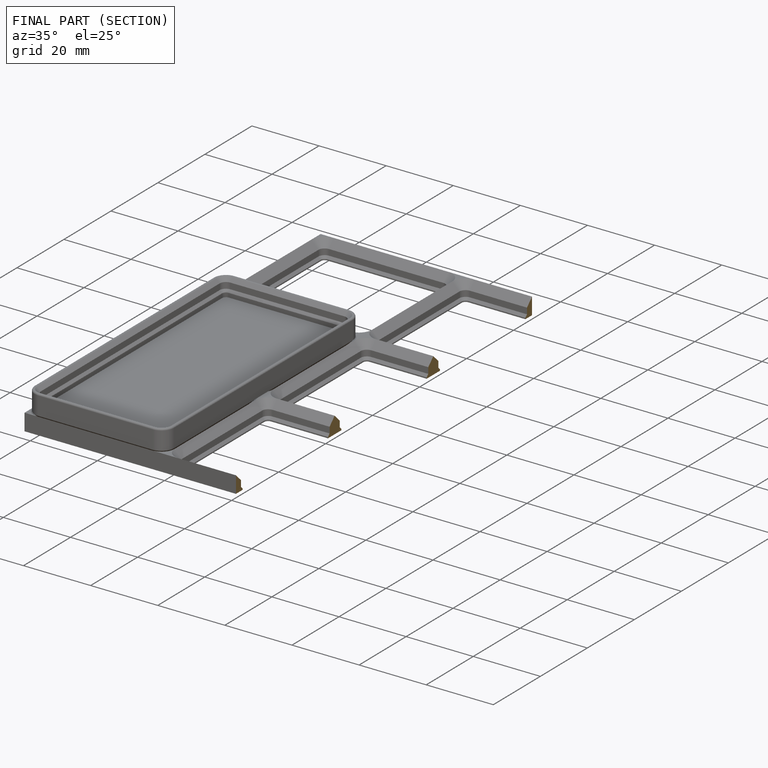
[diagram: finished part — half-section view (interior)]
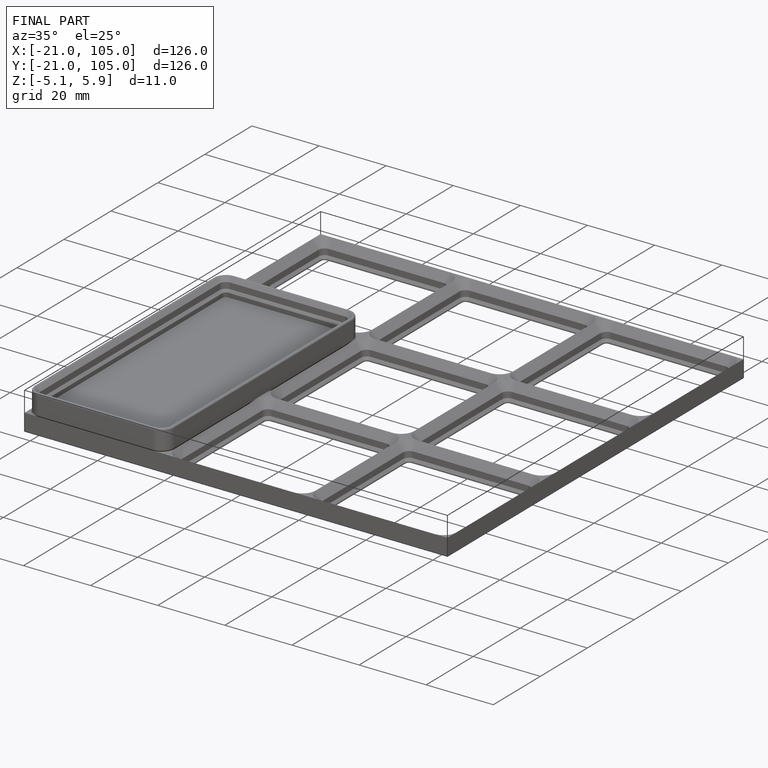
[diagram: finished part — iso view with bounding-box wireframe]
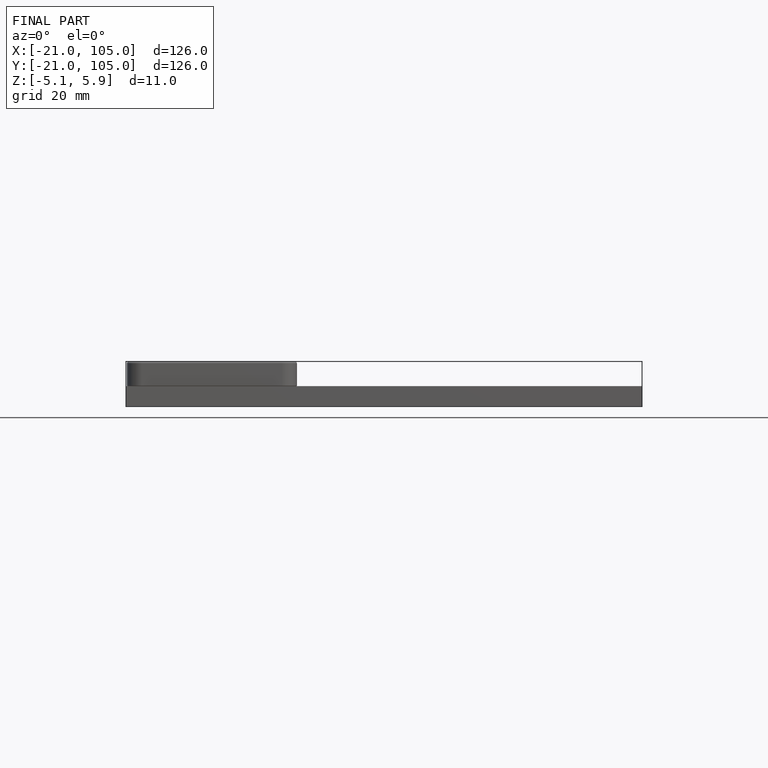
[diagram: finished part — front view with bounding-box wireframe]
